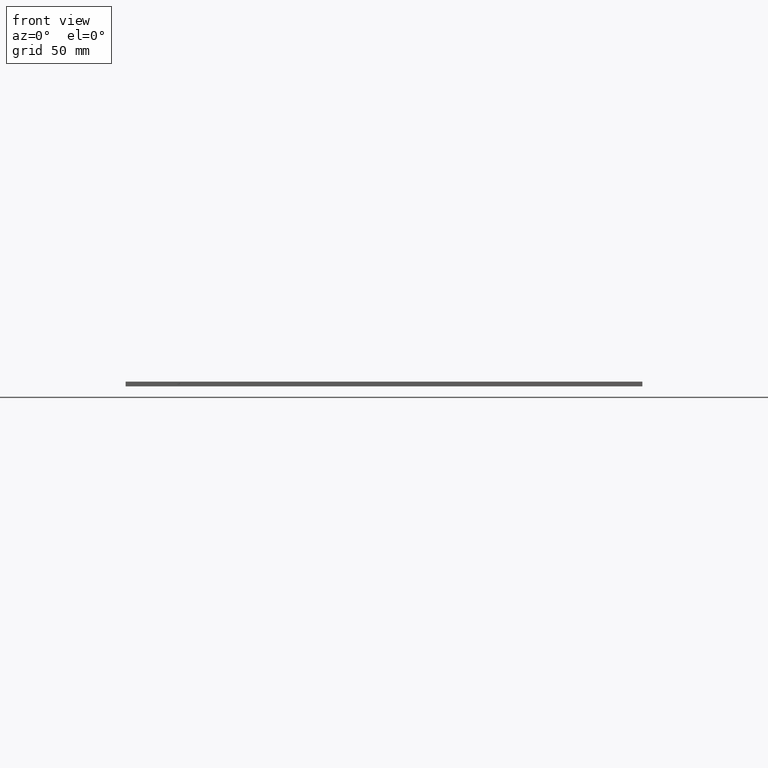
[diagram: clean part render]
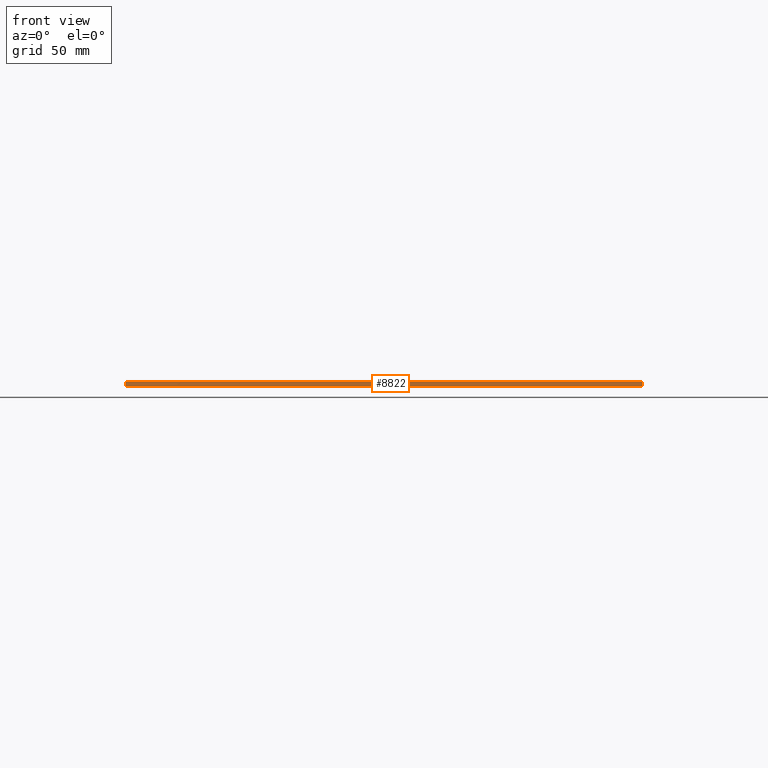
[diagram: same view with one face highlighted and labeled with its STEP entity id]
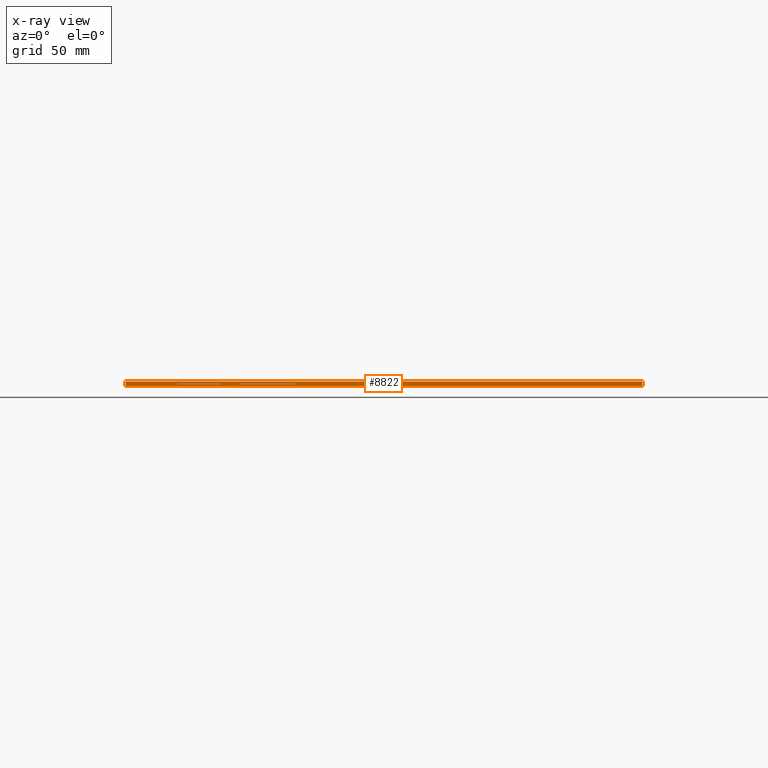
[diagram: x-ray of the same camera — body ghosted, the highlighted face saturated]
A machine part, front view. The second image highlights one B-rep face of the part: STEP entity #8822.
The next image is the same camera in x-ray: the body ghosted, the highlighted face saturated — about 2% of this face is hidden behind the body in this view.
In plain terms, the highlighted planar face has unit normal (0, -1, 0).
Its self-contained STEP definition (entity closure, byte-faithful):
#73=FACE_BOUND('',#1333,.T.);
#74=FACE_BOUND('',#1334,.T.);
#486=PLANE('',#9276);
#908=FACE_OUTER_BOUND('',#1332,.T.);
#1332=EDGE_LOOP('',(#8371,#8372,#8373,#8374));
#1333=EDGE_LOOP('',(#8375,#8376,#8377,#8378));
#1334=EDGE_LOOP('',(#8379,#8380,#8381,#8382));
#1342=LINE('',#11401,#2578);
#1348=LINE('',#11414,#2584);
#1755=LINE('',#12248,#2991);
#2525=LINE('',#13788,#3761);
#2534=LINE('',#13806,#3770);
#2536=LINE('',#13809,#3772);
#2537=LINE('',#13811,#3773);
#2538=LINE('',#13813,#3774);
#2565=LINE('',#13870,#3801);
#2569=LINE('',#13877,#3805);
#2570=LINE('',#13880,#3806);
#2571=LINE('',#13881,#3807);
#2578=VECTOR('',#9294,10.);
#2584=VECTOR('',#9304,10.);
#2991=VECTOR('',#9753,10.);
#3761=VECTOR('',#11289,10.);
#3770=VECTOR('',#11308,10.);
#3772=VECTOR('',#11312,10.);
#3773=VECTOR('',#11315,10.);
#3774=VECTOR('',#11318,10.);
#3801=VECTOR('',#11365,10.);
#3805=VECTOR('',#11371,10.);
#3806=VECTOR('',#11374,10.);
#3807=VECTOR('',#11375,10.);
#3827=VERTEX_POINT('',#11398);
#3828=VERTEX_POINT('',#11400);
#3833=VERTEX_POINT('',#11412);
#4239=VERTEX_POINT('',#12247);
#4625=VERTEX_POINT('',#13785);
#4626=VERTEX_POINT('',#13787);
#4629=VERTEX_POINT('',#13803);
#4630=VERTEX_POINT('',#13805);
#4649=VERTEX_POINT('',#13867);
#4650=VERTEX_POINT('',#13869);
#4652=VERTEX_POINT('',#13875);
#4653=VERTEX_POINT('',#13879);
#4660=EDGE_CURVE('',#3828,#3827,#1342,.T.);
#4667=EDGE_CURVE('',#3827,#3833,#1348,.T.);
#5083=EDGE_CURVE('',#4239,#3828,#1755,.T.);
#5853=EDGE_CURVE('',#4626,#4625,#2525,.T.);
#5862=EDGE_CURVE('',#4630,#4629,#2534,.T.);
#5864=EDGE_CURVE('',#4625,#4630,#2536,.T.);
#5865=EDGE_CURVE('',#4629,#4626,#2537,.T.);
#5866=EDGE_CURVE('',#3833,#4239,#2538,.T.);
#5893=EDGE_CURVE('',#4649,#4650,#2565,.T.);
#5897=EDGE_CURVE('',#4649,#4652,#2569,.T.);
#5898=EDGE_CURVE('',#4653,#4652,#2570,.T.);
#5899=EDGE_CURVE('',#4650,#4653,#2571,.T.);
#8371=ORIENTED_EDGE('',*,*,#5893,.F.);
#8372=ORIENTED_EDGE('',*,*,#5897,.T.);
#8373=ORIENTED_EDGE('',*,*,#5898,.F.);
#8374=ORIENTED_EDGE('',*,*,#5899,.F.);
#8375=ORIENTED_EDGE('',*,*,#5862,.T.);
#8376=ORIENTED_EDGE('',*,*,#5865,.T.);
#8377=ORIENTED_EDGE('',*,*,#5853,.T.);
#8378=ORIENTED_EDGE('',*,*,#5864,.T.);
#8379=ORIENTED_EDGE('',*,*,#5083,.T.);
#8380=ORIENTED_EDGE('',*,*,#4660,.T.);
#8381=ORIENTED_EDGE('',*,*,#4667,.T.);
#8382=ORIENTED_EDGE('',*,*,#5866,.T.);
#8822=ADVANCED_FACE('',(#908,#73,#74),#486,.T.);
#9276=AXIS2_PLACEMENT_3D('',#13878,#11372,#11373);
#9294=DIRECTION('',(-1.,-2.05359172185E-16,0.));
#9304=DIRECTION('',(0.,0.,1.));
#9753=DIRECTION('',(0.,0.,-1.));
#11289=DIRECTION('',(0.,0.,1.));
#11308=DIRECTION('',(0.,0.,-1.));
#11312=DIRECTION('',(1.,2.05359172185E-16,0.));
#11315=DIRECTION('',(-1.,-2.05359172185E-16,0.));
#11318=DIRECTION('',(1.,2.05359172185E-16,0.));
#11365=DIRECTION('',(1.,2.05359172185E-16,0.));
#11371=DIRECTION('',(0.,0.,-1.));
#11372=DIRECTION('center_axis',(2.05359172185E-16,-1.,0.));
#11373=DIRECTION('ref_axis',(-1.,-2.05359172185E-16,0.));
#11374=DIRECTION('',(-1.,-2.05359172185E-16,0.));
#11375=DIRECTION('',(0.,0.,-1.));
#11398=CARTESIAN_POINT('',(-104.,-102.35,-1.225));
#11400=CARTESIAN_POINT('',(-82.4999999999999,-102.35,-1.225));
#11401=CARTESIAN_POINT('',(18.0750000000001,-102.35,-1.225));
#11412=CARTESIAN_POINT('',(-104.,-102.35,-1.1));
#11414=CARTESIAN_POINT('',(-104.,-102.35,-0.55));
#12247=CARTESIAN_POINT('',(-82.4999999999999,-102.35,-1.1));
#12248=CARTESIAN_POINT('',(-82.4999999999999,-102.35,-0.55));
#13785=CARTESIAN_POINT('',(-73.,-102.35,-1.1));
#13787=CARTESIAN_POINT('',(-73.,-102.35,-1.225));
#13788=CARTESIAN_POINT('',(-73.,-102.35,-0.55));
#13803=CARTESIAN_POINT('',(-44.9999999999998,-102.35,-1.225));
#13805=CARTESIAN_POINT('',(-44.9999999999998,-102.35,-1.1));
#13806=CARTESIAN_POINT('',(-44.9999999999998,-102.35,-0.55));
#13809=CARTESIAN_POINT('',(35.2000000000001,-102.35,-1.1));
#13811=CARTESIAN_POINT('',(35.2000000000001,-102.35,-1.225));
#13813=CARTESIAN_POINT('',(18.0750000000001,-102.35,-1.1));
#13867=CARTESIAN_POINT('',(-130.1,-102.35,0.));
#13869=CARTESIAN_POINT('',(129.4,-102.35,0.));
#13870=CARTESIAN_POINT('',(-130.1,-102.35,0.));
#13875=CARTESIAN_POINT('',(-130.1,-102.35,-2.35));
#13877=CARTESIAN_POINT('',(-130.1,-102.35,0.));
#13878=CARTESIAN_POINT('Origin',(129.4,-102.35,0.));
#13879=CARTESIAN_POINT('',(129.4,-102.35,-2.35));
#13880=CARTESIAN_POINT('',(-130.1,-102.35,-2.35));
#13881=CARTESIAN_POINT('',(129.4,-102.35,0.));